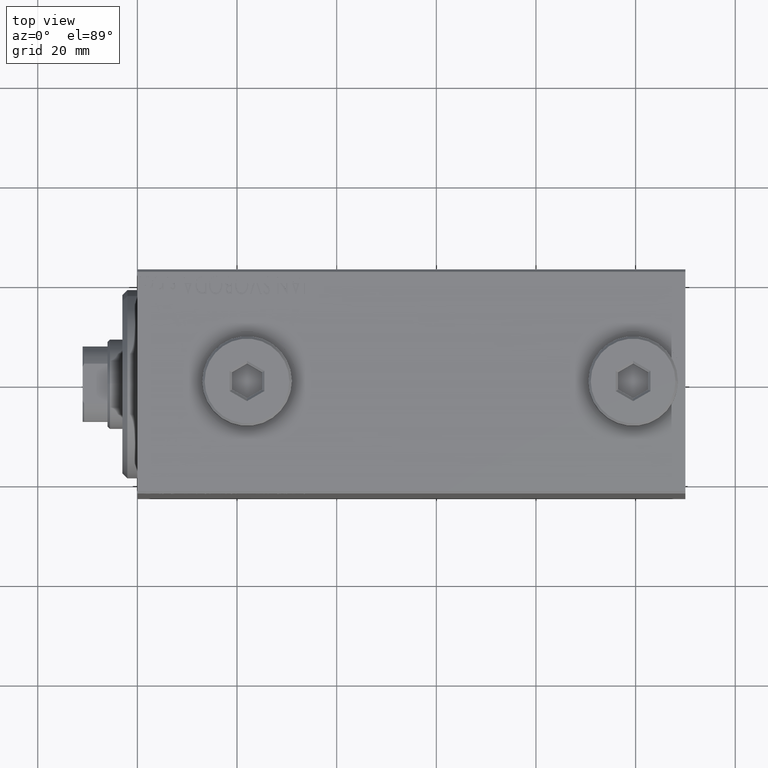
[diagram: clean part render]
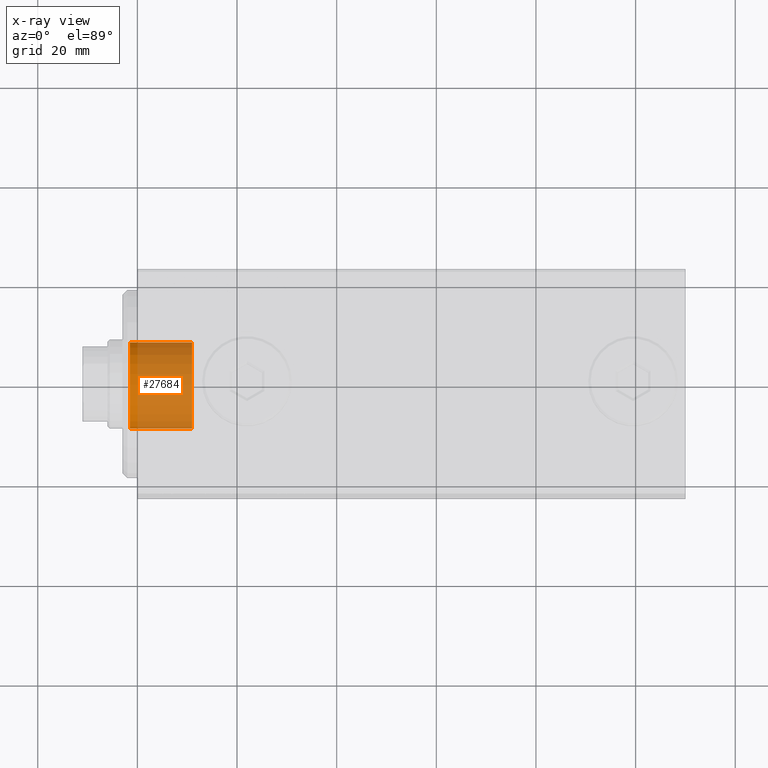
[diagram: x-ray — body ghosted, one internal face saturated and labeled with its STEP entity id]
A machine part, top view, then the same camera in x-ray: the body is ghosted and one INTERNAL B-rep face — a face not visible from any outside direction — is saturated and labeled: STEP entity #27684.
In plain terms, the highlighted cylindrical surface (partial cylindrical patch) has radius 9 mm, axis along (-1, 0, 0).
Its self-contained STEP definition (entity closure, byte-faithful):
#460 = AXIS2_PLACEMENT_3D ( 'NONE', #41348, #10041, #34466 ) ;
#1948 = CARTESIAN_POINT ( 'NONE',  ( -11.00000000000000000, 0.000000000000000000, 0.000000000000000000 ) ) ;
#1965 = VERTEX_POINT ( 'NONE', #20037 ) ;
#5002 = ORIENTED_EDGE ( 'NONE', *, *, #41267, .F. ) ;
#5603 = DIRECTION ( 'NONE',  ( 0.000000000000000000, 0.000000000000000000, -1.000000000000000000 ) ) ;
#6478 = ORIENTED_EDGE ( 'NONE', *, *, #8110, .F. ) ;
#6513 = DIRECTION ( 'NONE',  ( 1.000000000000000000, 0.000000000000000000, 0.000000000000000000 ) ) ;
#6677 = VERTEX_POINT ( 'NONE', #44589 ) ;
#8110 = EDGE_CURVE ( 'NONE', #13897, #6677, #35093, .T. ) ;
#9345 = EDGE_CURVE ( 'NONE', #26560, #6677, #42832, .T. ) ;
#10041 = DIRECTION ( 'NONE',  ( 1.000000000000000000, -0.000000000000000000, -0.000000000000000000 ) ) ;
#12380 = DIRECTION ( 'NONE',  ( 1.000000000000000000, -0.000000000000000000, -0.000000000000000000 ) ) ;
#13897 = VERTEX_POINT ( 'NONE', #30511 ) ;
#14312 = DIRECTION ( 'NONE',  ( 1.000000000000000000, -0.000000000000000000, -0.000000000000000000 ) ) ;
#15884 = DIRECTION ( 'NONE',  ( 1.000000000000000000, 0.000000000000000000, 0.000000000000000000 ) ) ;
#15954 = VECTOR ( 'NONE', #12380, 1000.000000000000000 ) ;
#16193 = EDGE_CURVE ( 'NONE', #1965, #26560, #23320, .T. ) ;
#19623 = FACE_OUTER_BOUND ( 'NONE', #38966, .T. ) ;
#20037 = CARTESIAN_POINT ( 'NONE',  ( -11.00000000000000000, 1.102182119232617517E-15, 9.000000000000000000 ) ) ;
#23320 = LINE ( 'NONE', #40718, #15954 ) ;
#23728 = CYLINDRICAL_SURFACE ( 'NONE', #460, 9.000000000000000000 ) ;
#24802 = CARTESIAN_POINT ( 'NONE',  ( -11.00000000000000000, 0.000000000000000000, -9.000000000000000000 ) ) ;
#26560 = VERTEX_POINT ( 'NONE', #26747 ) ;
#26747 = CARTESIAN_POINT ( 'NONE',  ( 1.499999999999999556, 1.102182119232617517E-15, 9.000000000000000000 ) ) ;
#26838 = CARTESIAN_POINT ( 'NONE',  ( 1.499999999999999556, 0.000000000000000000, 0.000000000000000000 ) ) ;
#26967 = AXIS2_PLACEMENT_3D ( 'NONE', #1948, #15884, #5603 ) ;
#27684 = ADVANCED_FACE ( 'NONE', ( #19623 ), #23728, .F. ) ;
#29649 = AXIS2_PLACEMENT_3D ( 'NONE', #26838, #6513, #44246 ) ;
#30511 = CARTESIAN_POINT ( 'NONE',  ( -11.00000000000000000, 0.000000000000000000, -9.000000000000000000 ) ) ;
#31100 = VECTOR ( 'NONE', #14312, 1000.000000000000000 ) ;
#32455 = ORIENTED_EDGE ( 'NONE', *, *, #9345, .T. ) ;
#34059 = ORIENTED_EDGE ( 'NONE', *, *, #16193, .T. ) ;
#34466 = DIRECTION ( 'NONE',  ( 0.000000000000000000, 0.000000000000000000, -1.000000000000000000 ) ) ;
#35093 = LINE ( 'NONE', #24802, #31100 ) ;
#36467 = CIRCLE ( 'NONE', #26967, 9.000000000000000000 ) ;
#38966 = EDGE_LOOP ( 'NONE', ( #5002, #34059, #32455, #6478 ) ) ;
#40718 = CARTESIAN_POINT ( 'NONE',  ( -11.00000000000000000, 1.102182119232617517E-15, 9.000000000000000000 ) ) ;
#41267 = EDGE_CURVE ( 'NONE', #1965, #13897, #36467, .T. ) ;
#41348 = CARTESIAN_POINT ( 'NONE',  ( -11.00000000000000000, 0.000000000000000000, 0.000000000000000000 ) ) ;
#42832 = CIRCLE ( 'NONE', #29649, 9.000000000000000000 ) ;
#44246 = DIRECTION ( 'NONE',  ( 0.000000000000000000, 0.000000000000000000, -1.000000000000000000 ) ) ;
#44589 = CARTESIAN_POINT ( 'NONE',  ( 1.499999999999999556, 0.000000000000000000, -9.000000000000000000 ) ) ;